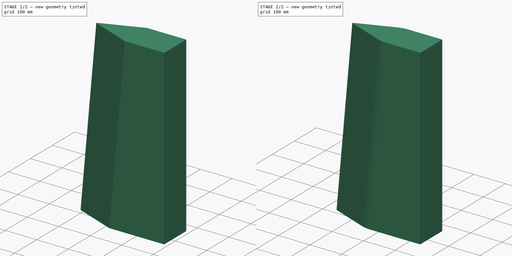
[diagram: build sequence overview — one tinted view per stage of 2, left to right]
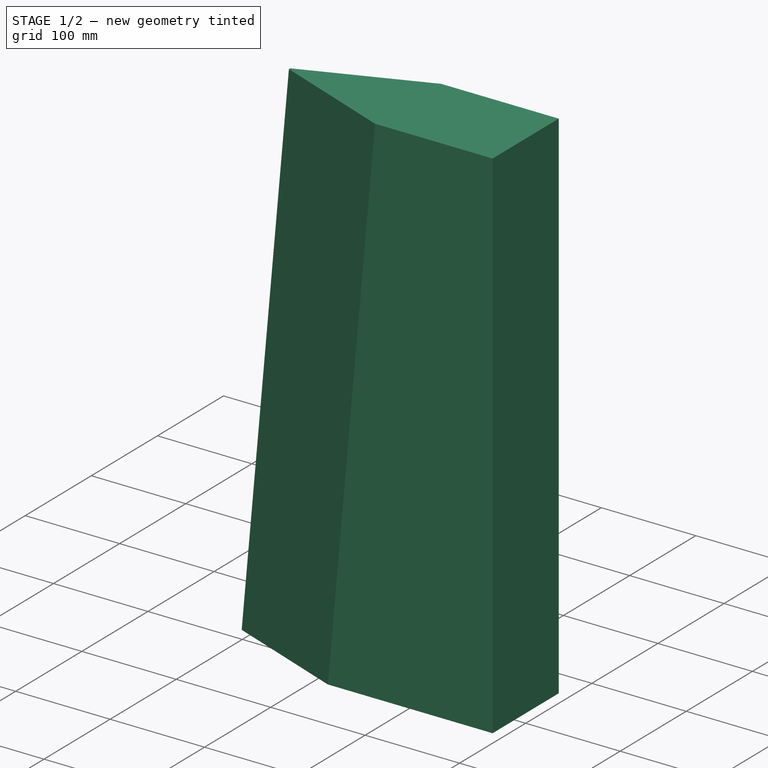
[diagram: stage 1 of 2 — iso view after this stage's code; geometry added in this stage tinted green]
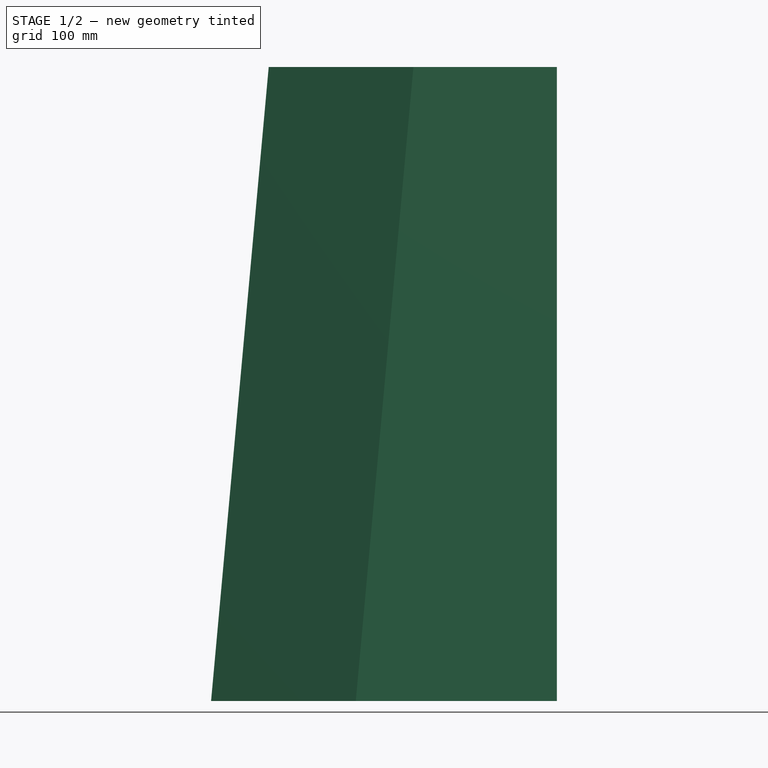
[diagram: stage 1 of 2 — front view after this stage's code; geometry added in this stage tinted green]
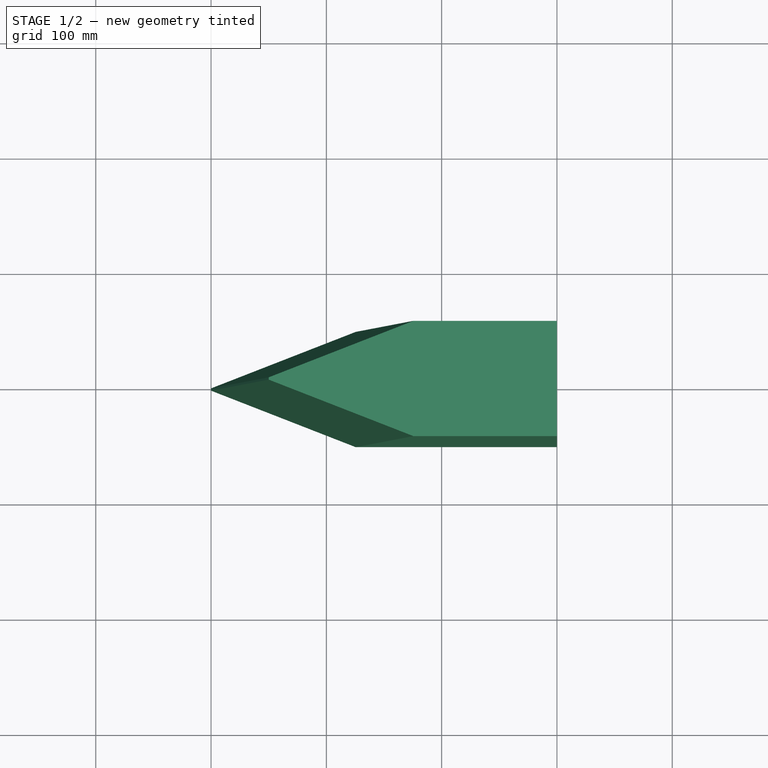
[diagram: stage 1 of 2 — top view after this stage's code; geometry added in this stage tinted green]
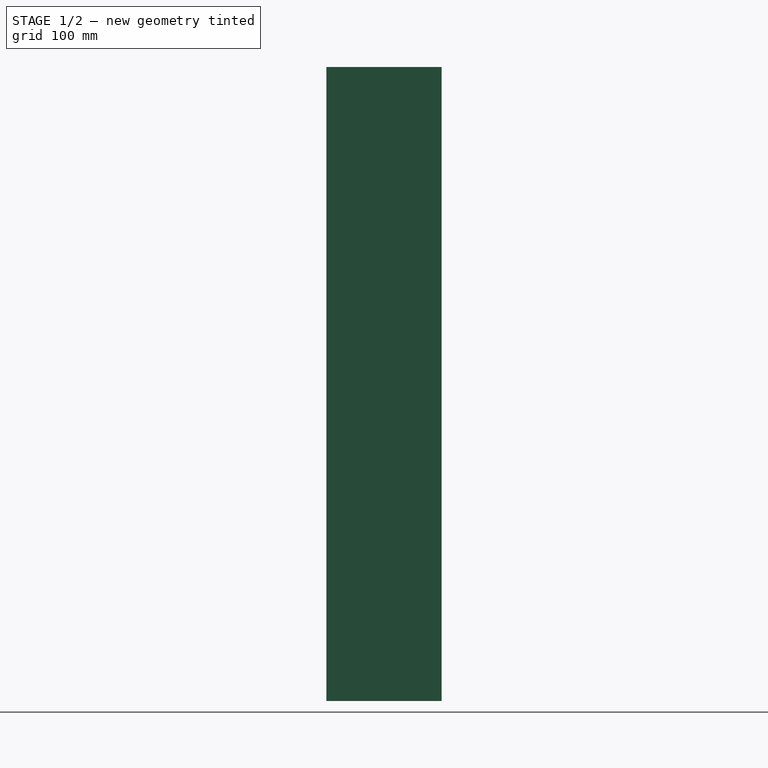
[diagram: stage 1 of 2 — right view after this stage's code; geometry added in this stage tinted green]
FCSTD DOCUMENT  (FreeCAD 0.20R29177 (Git))
Label: Fin
License: All rights reserved
LicenseURL: http://en.wikipedia.org/wiki/All_rights_reserved
objects: Sketcher::SketchObject×1, PartDesign::Pad×1, Spreadsheet::Sheet×1, PartDesign::Chamfer×1, PartDesign::Body×1, Part::Fillet×1
note: 7 computed .brp shape members not serialized (recipe doc carries the construction recipe); baked Part::Feature solids carry a one-line shape summary decoded from their .brp

FEATURE [Sketcher::SketchObject] Sketch004  label="Sketch004_fin_1"
  FullyConstrained = true
  MapMode = 5
  Placement = pos=(0,0,0) rot=(1,0,0;1.5708rad)
  Support = -> [XZ_Plane007]
  expr: Constraints[10] = <<Parameters>>.height
  expr: Constraints[8] = <<Parameters>>.lower_length
  expr: Constraints[9] = <<Parameters>>.upper_length
  sketch-geometry (4):
    g0: LineSegment StartX=0 StartY=0 StartZ=0 EndX=300 EndY=0 EndZ=0
    g1: LineSegment StartX=300 StartY=0 StartZ=0 EndX=300 EndY=550 EndZ=0
    g2: LineSegment StartX=300 StartY=550 StartZ=0 EndX=50 EndY=550 EndZ=0
    g3: LineSegment StartX=50 StartY=550 StartZ=0 EndX=0 EndY=0 EndZ=0
  constraints (11):
    c: Coincident(g-1,g0)
    c: PointOnObject(g0,g-1)
    c: Coincident(g0,g1)
    c: Vertical(g1)
    c: Coincident(g1,g2)
    c: Coincident(g2,g3)
    c: Coincident(g3,g0)
    c: Horizontal(g2)
    c: DistanceX(g0,g0) = 300
    c: DistanceX(g2,g2) = 250
    c: DistanceY(g1,g1) = 550
FEATURE [PartDesign::Pad] Pad002  label="Pad002_fin_1"
  Direction = (0,-1,-2e-16)
  Length = 100
  Length2 = 100
  Midplane = true
  Placement = pos=(0,0,0) rot=(1,0,0;1.5708rad)
  Profile = -> Sketch004
  Type = 0
  expr: Length = <<Parameters>>.thickness
FEATURE [Spreadsheet::Sheet] Spreadsheet007  label="Parameters"
  cells = A1=Height; B1(height)==0.55m; A2=Lower Length; B2(lower_length)==0.3m; A3=Thickness; B3(thickness)==0.1m; A4=Upper Length; B4(upper_length)==0.25m
FEATURE [PartDesign::Chamfer] Chamfer  label="Chamfer_fin_1"
  Angle = 45
  Base = -> Pad002 [Edge11,Edge12]
  BaseFeature = -> Pad002
  ChamferType = 1
  FlipDirection = false
  Placement = pos=(0,0,0) rot=(1,0,0;1.5708rad)
  Size = 49
  Size2 = 125
  SupportTransform = false
  UseAllEdges = false
  expr: Size = <<Parameters>>.thickness / 2 - 1mm
  expr: Size2 = <<Parameters>>.upper_length / 2
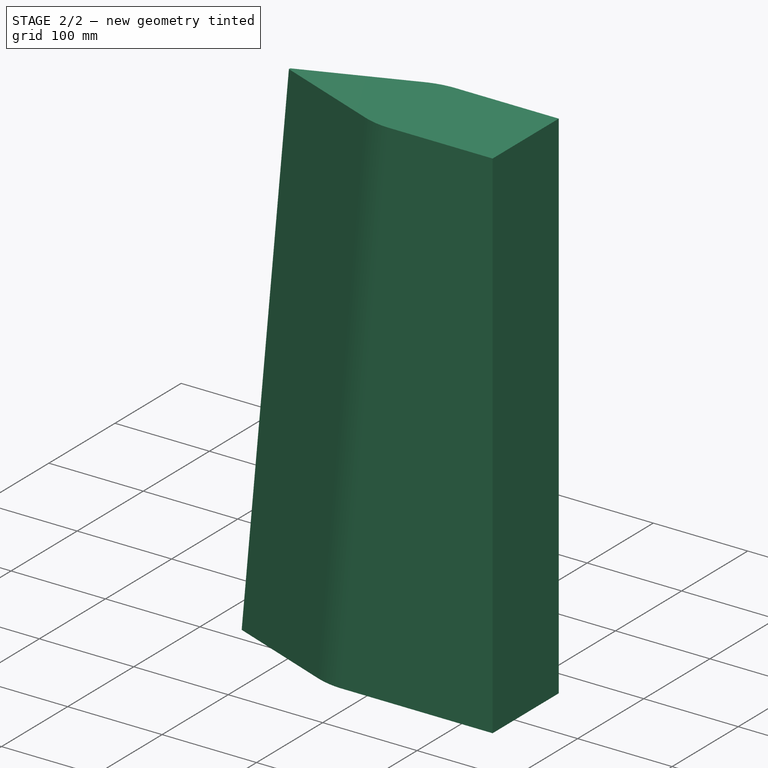
[diagram: stage 2 of 2 — iso view after this stage's code; geometry added in this stage tinted green]
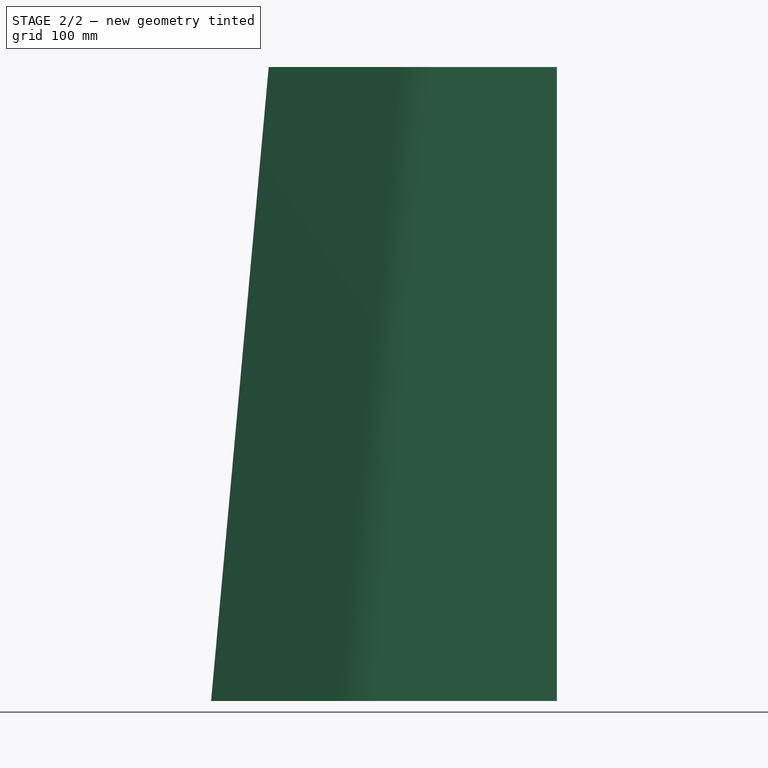
[diagram: stage 2 of 2 — front view after this stage's code; geometry added in this stage tinted green]
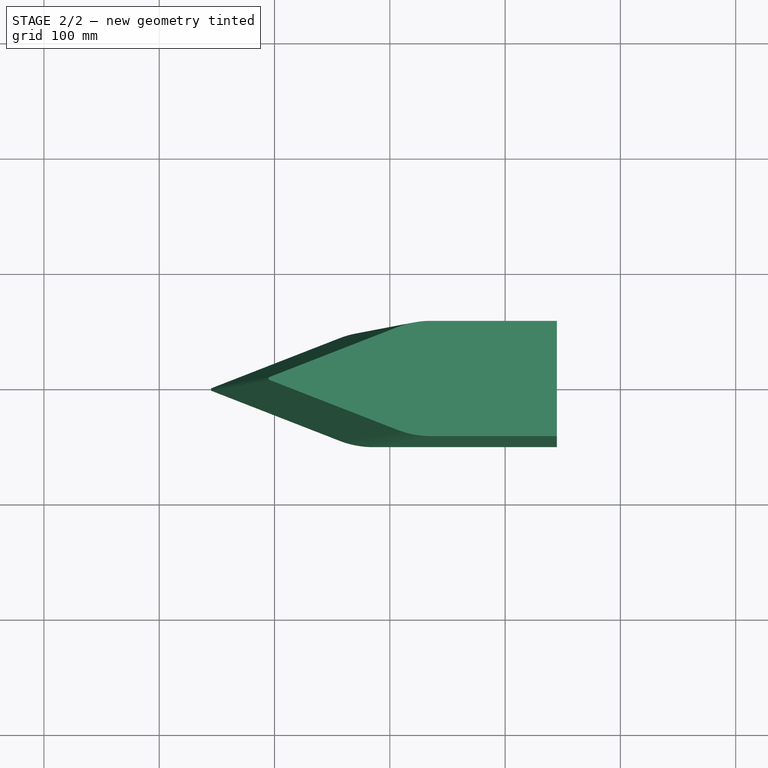
[diagram: stage 2 of 2 — top view after this stage's code; geometry added in this stage tinted green]
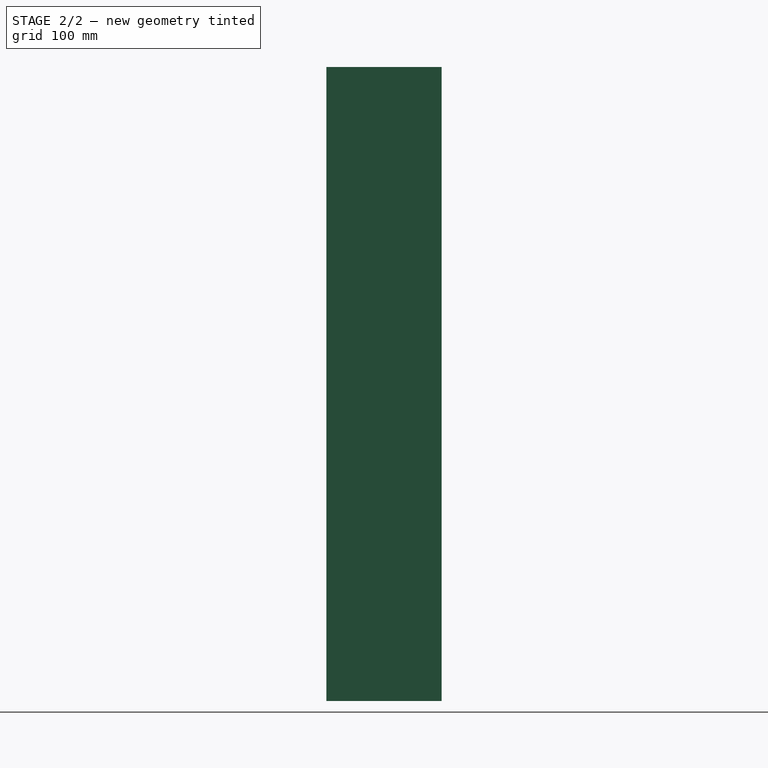
[diagram: stage 2 of 2 — right view after this stage's code; geometry added in this stage tinted green]
FEATURE [PartDesign::Body] Body005  label="Fin"
  Group = -> [Sketch004,Pad002,Chamfer]
  Origin = -> Origin007
  Placement = pos=(3844.96,0,513) rot=(0,0,1;0rad)
  Tip = -> Chamfer
FEATURE [Part::Fillet] Fillet  label="Model"
  Base = -> Body005
  Edges = 2 edges r=80: [Edge11,Edge13]
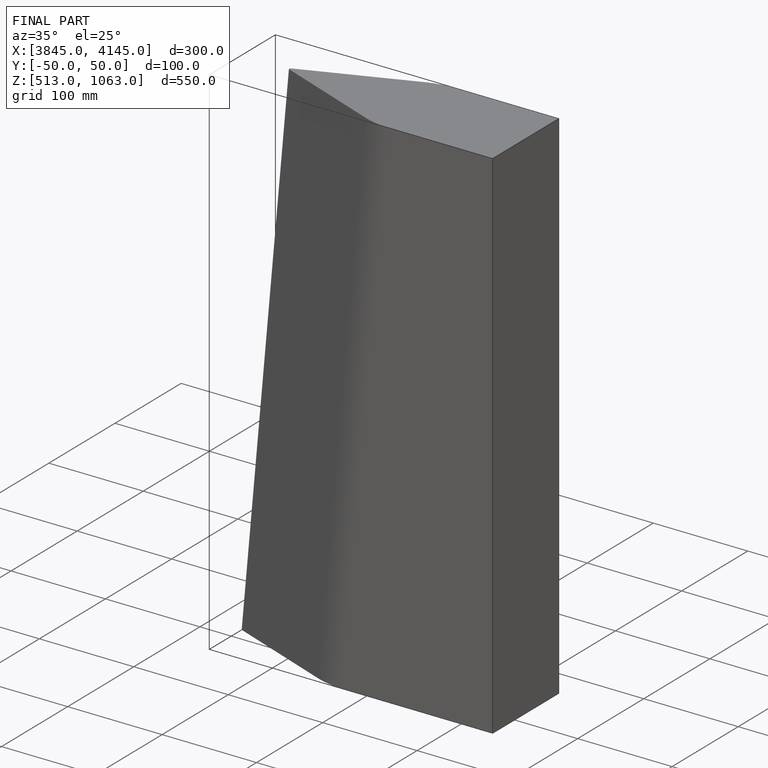
[diagram: finished part — iso view with bounding-box wireframe]
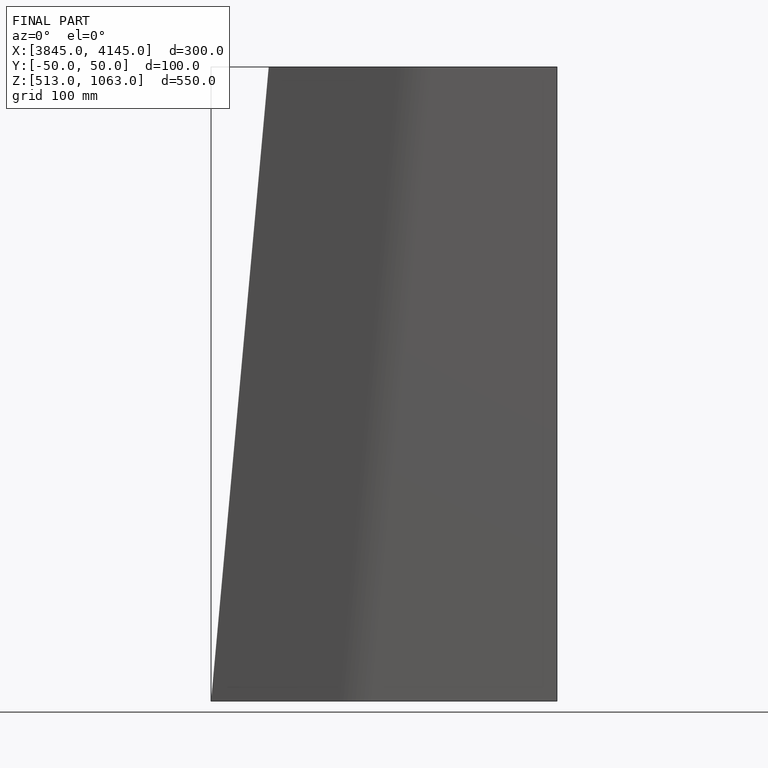
[diagram: finished part — front view with bounding-box wireframe]
